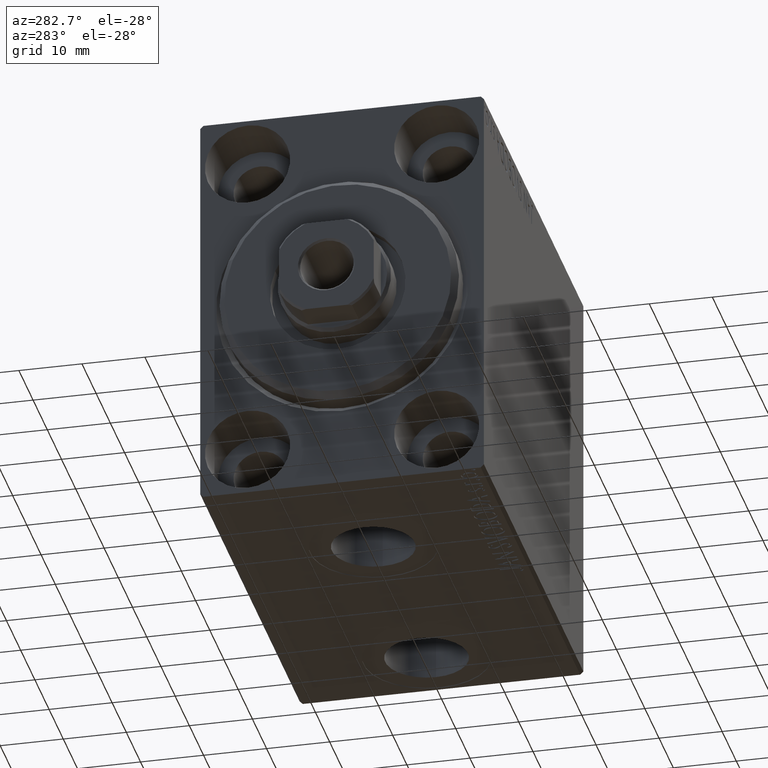
[diagram: clean part render]
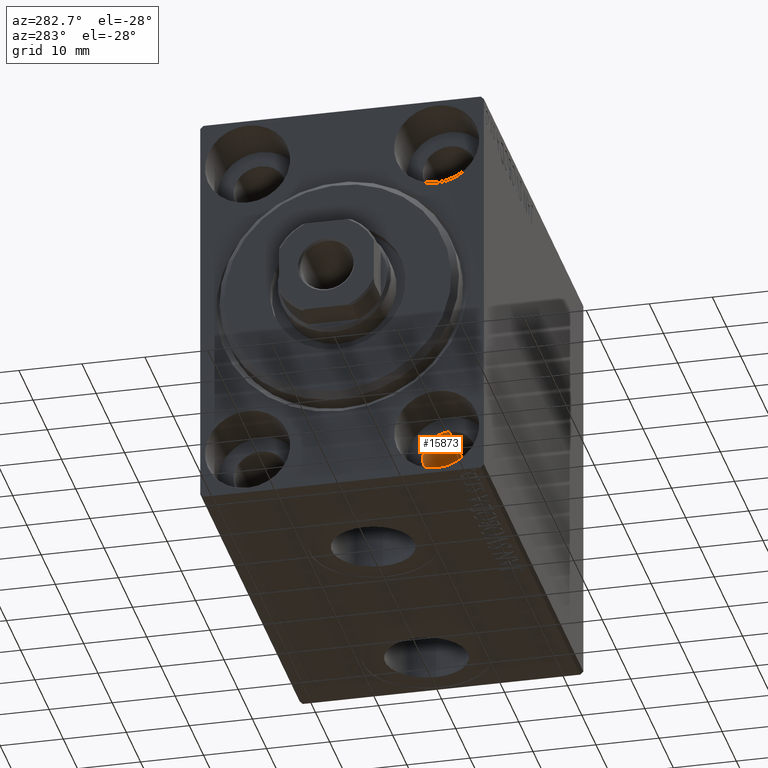
[diagram: same view with one face highlighted and labeled with its STEP entity id]
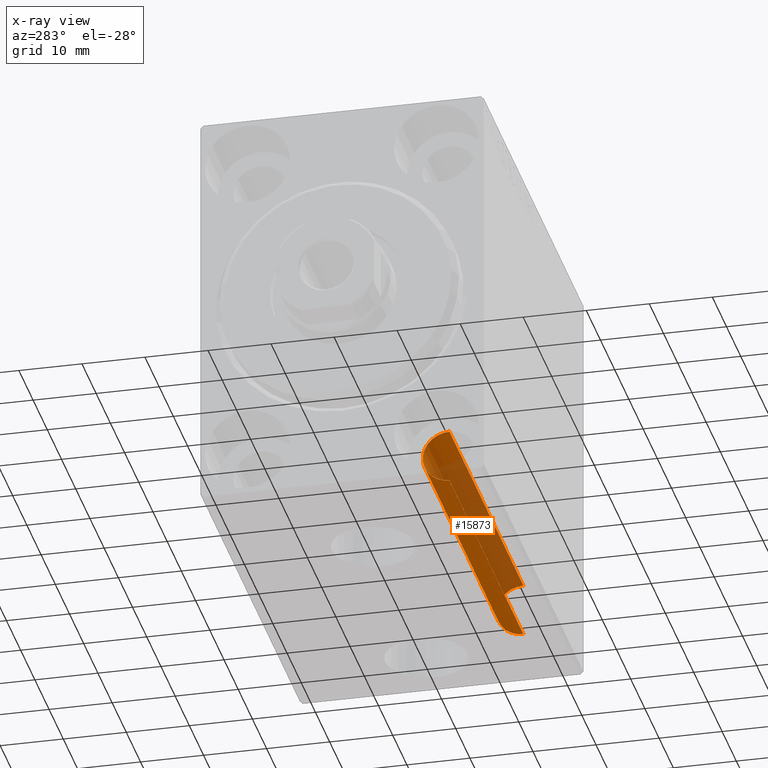
[diagram: x-ray of the same camera — body ghosted, the highlighted face saturated]
A machine part, auxiliary view. The second image highlights one B-rep face of the part: STEP entity #15873.
The next image is the same camera in x-ray: the body ghosted, the highlighted face saturated — about 45% of this face is hidden behind the body in this view.
In plain terms, the highlighted cylindrical surface (edge-blend (fillet) strip) has radius 4.25 mm, axis along (-1, -0, -0).
Its self-contained STEP definition (entity closure, byte-faithful):
#296 = EDGE_CURVE ( 'NONE', #41055, #43889, #40536, .T. ) ;
#2367 = DIRECTION ( 'NONE',  ( -1.000000000000000000, -0.000000000000000000, -0.000000000000000000 ) ) ;
#3962 = AXIS2_PLACEMENT_3D ( 'NONE', #18072, #7834, #14294 ) ;
#4666 = EDGE_CURVE ( 'NONE', #10636, #43889, #24483, .T. ) ;
#4668 = DIRECTION ( 'NONE',  ( -1.000000000000000000, -0.000000000000000000, -0.000000000000000000 ) ) ;
#4826 = ORIENTED_EDGE ( 'NONE', *, *, #296, .T. ) ;
#7307 = CARTESIAN_POINT ( 'NONE',  ( 61.00000000000000711, -15.00000000000000355, -29.25000000000000000 ) ) ;
#7834 = DIRECTION ( 'NONE',  ( -1.000000000000000000, -0.000000000000000000, -0.000000000000000000 ) ) ;
#9432 = CARTESIAN_POINT ( 'NONE',  ( 9.000000000000001776, -15.00000000000000355, -29.25000000000000000 ) ) ;
#10636 = VERTEX_POINT ( 'NONE', #7307 ) ;
#11313 = DIRECTION ( 'NONE',  ( -1.000000000000000000, 0.000000000000000000, 0.000000000000000000 ) ) ;
#11340 = VERTEX_POINT ( 'NONE', #15567 ) ;
#12572 = CARTESIAN_POINT ( 'NONE',  ( 9.000000000000001776, -15.00000000000000355, -25.00000000000000000 ) ) ;
#13209 = CIRCLE ( 'NONE', #18905, 4.249999999999996447 ) ;
#13231 = CARTESIAN_POINT ( 'NONE',  ( 9.000000000000001776, -15.00000000000000355, -20.75000000000000355 ) ) ;
#14294 = DIRECTION ( 'NONE',  ( 0.000000000000000000, 0.000000000000000000, 1.000000000000000000 ) ) ;
#15567 = CARTESIAN_POINT ( 'NONE',  ( 61.00000000000000711, -15.00000000000000355, -20.75000000000000355 ) ) ;
#15837 = VECTOR ( 'NONE', #4668, 1000.000000000000000 ) ;
#15873 = ADVANCED_FACE ( 'NONE', ( #30992 ), #38095, .F. ) ;
#17780 = EDGE_LOOP ( 'NONE', ( #28814, #38180, #27530, #4826 ) ) ;
#18072 = CARTESIAN_POINT ( 'NONE',  ( 70.00000000000000000, -15.00000000000000355, -25.00000000000000000 ) ) ;
#18905 = AXIS2_PLACEMENT_3D ( 'NONE', #29503, #2367, #39728 ) ;
#21077 = CARTESIAN_POINT ( 'NONE',  ( 70.00000000000000000, -15.00000000000000355, -20.75000000000000355 ) ) ;
#21295 = DIRECTION ( 'NONE',  ( -1.000000000000000000, -0.000000000000000000, -0.000000000000000000 ) ) ;
#22748 = AXIS2_PLACEMENT_3D ( 'NONE', #12572, #11313, #42845 ) ;
#22839 = EDGE_CURVE ( 'NONE', #11340, #10636, #13209, .T. ) ;
#24425 = LINE ( 'NONE', #21077, #38312 ) ;
#24483 = LINE ( 'NONE', #35365, #15837 ) ;
#27530 = ORIENTED_EDGE ( 'NONE', *, *, #34733, .T. ) ;
#28814 = ORIENTED_EDGE ( 'NONE', *, *, #4666, .F. ) ;
#29503 = CARTESIAN_POINT ( 'NONE',  ( 61.00000000000000711, -15.00000000000000355, -25.00000000000000000 ) ) ;
#30992 = FACE_OUTER_BOUND ( 'NONE', #17780, .T. ) ;
#34733 = EDGE_CURVE ( 'NONE', #11340, #41055, #24425, .T. ) ;
#35365 = CARTESIAN_POINT ( 'NONE',  ( 70.00000000000000000, -15.00000000000000355, -29.25000000000000000 ) ) ;
#38095 = CYLINDRICAL_SURFACE ( 'NONE', #3962, 4.249999999999996447 ) ;
#38180 = ORIENTED_EDGE ( 'NONE', *, *, #22839, .F. ) ;
#38312 = VECTOR ( 'NONE', #21295, 1000.000000000000000 ) ;
#39728 = DIRECTION ( 'NONE',  ( 0.000000000000000000, 0.000000000000000000, -1.000000000000000000 ) ) ;
#40536 = CIRCLE ( 'NONE', #22748, 4.249999999999996447 ) ;
#41055 = VERTEX_POINT ( 'NONE', #13231 ) ;
#42845 = DIRECTION ( 'NONE',  ( 0.000000000000000000, 0.000000000000000000, 1.000000000000000000 ) ) ;
#43889 = VERTEX_POINT ( 'NONE', #9432 ) ;